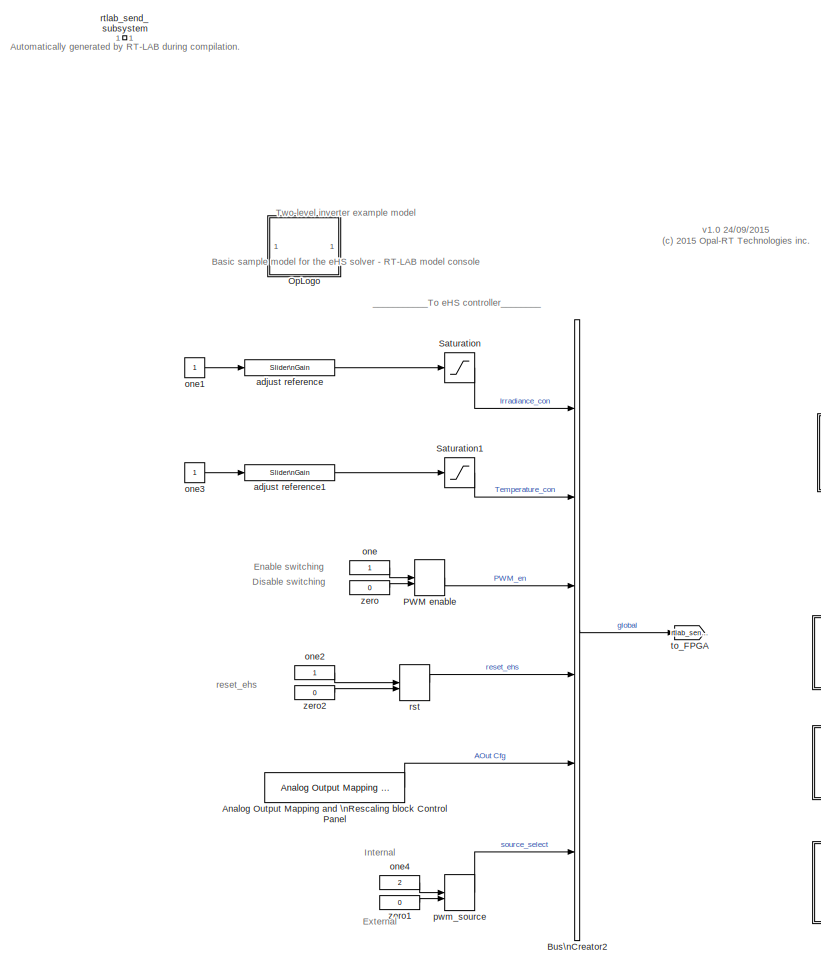
[diagram: root canvas - part 1/2, middle left region]
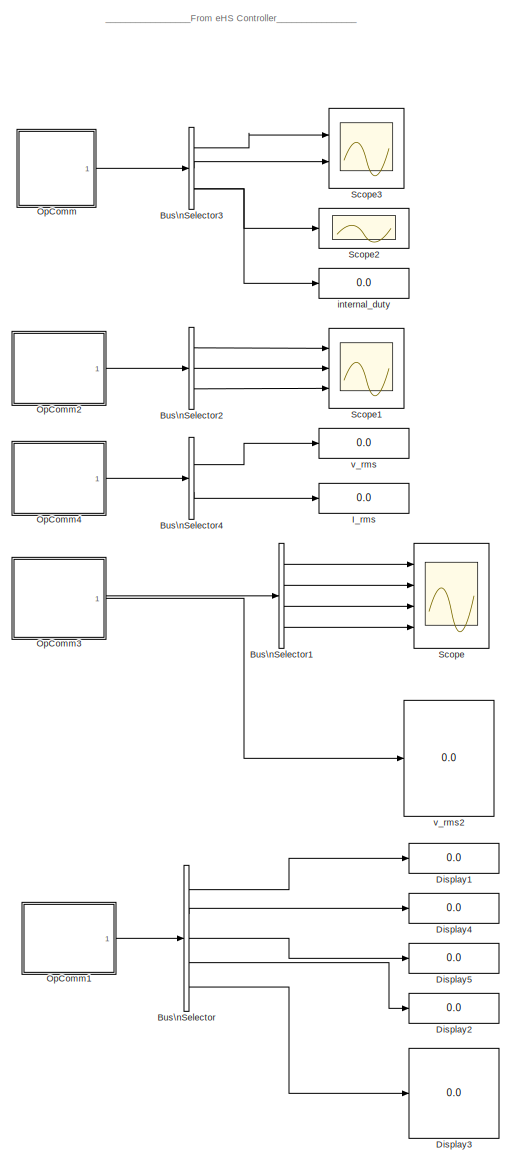
[diagram: root canvas - part 2/2, right side, full height]
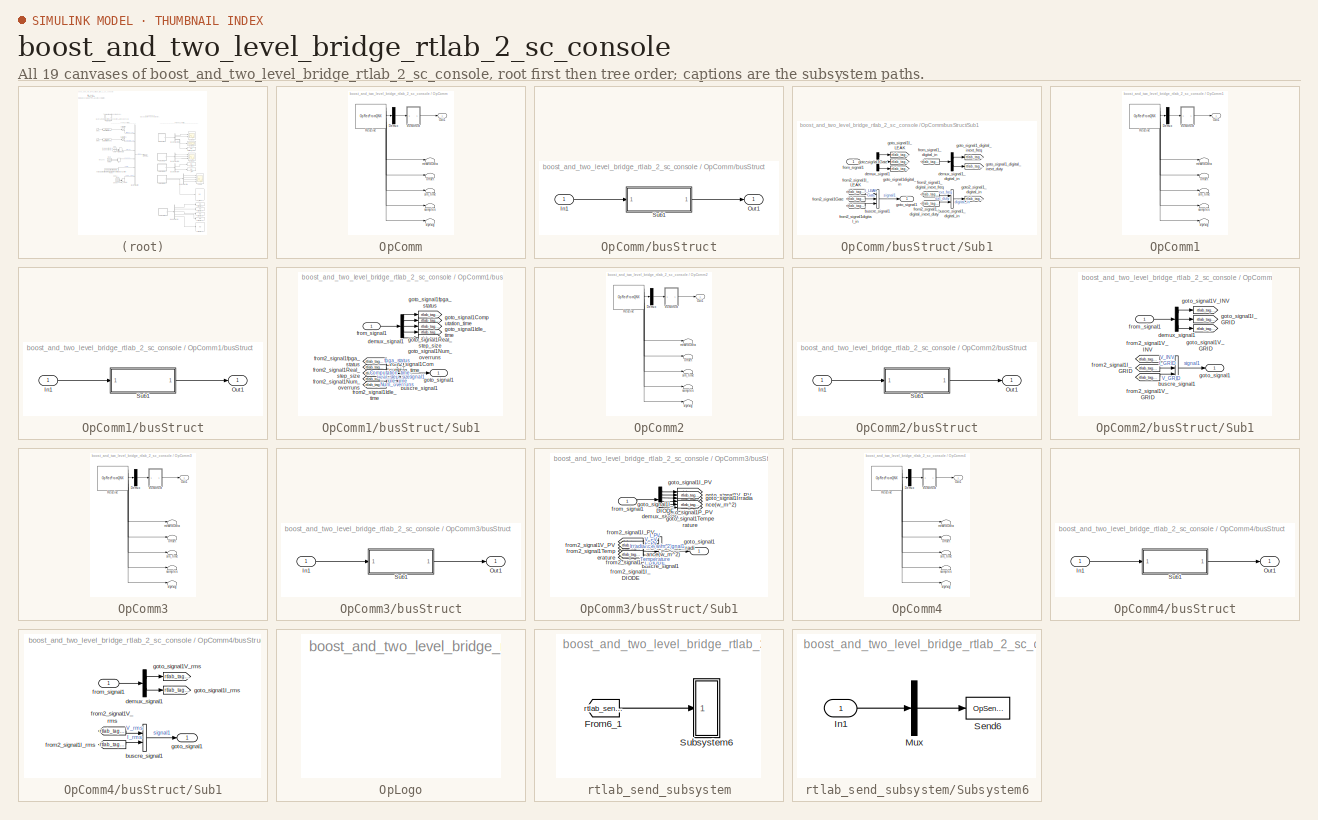
[diagram: thumbnail index - all 19 canvases of the model, root first then tree order]
MODEL boost_and_two_level_bridge_rtlab_2_sc_console
KIND model
CONFIG InitFcn = Ts = 20e-6;
CONFIG PostLoadFcn = Ts = 20e-6;
BLOCK [Reference] Analog Output Mapping and \nRescaling block Control Panel  REF=efs_cpuhilios_crtl_lib/Analog Output Mapping and \nRescaling block Control Panel
  NbChannels = 32
  NbUsrAOut = 16
  Ports = [0, 1]
  SID = 5559
  SigNames = {'eHS.Y01' 'eHS.Y02' 'eHS.Y03' 'eHS.Y04' 'eHS.Y05' 'eHS.Y06' 'eHS.Y07' 'eHS.Y08' 'eHS.Y09' 'eHS.Y10' 'eHS.Y11' 'eHS.Y12' 'eHS.Y13' 'eHS.Y14' 'eHS.Y15' 'eHS.Y16' 'eHS.Y17' 'eHS.Y18' 'eHS.Y19' 'eHS.Y20' 'eHS.Y21' 'eHS.Y22' 'eHS.Y23' 'eHS.Y24' 'eHS.Y25' 'eHS.Y26' 'eHS.Y27' 'eHS.Y28' 'eHS.Y29' 'eHS.Y30' 'eHS.Y31' 'eHS.Y32'}
  SourceBlock = efs_cpuhilios_crtl_lib/Analog Output Mapping and \nRescaling block Control Panel
  SourceType = Analog Output Mapping and Rescaling block Control Panel
  gain0 = 0.0063462
  gain1 = 0.33
  gain10 = 0.1
  gain11 = 0.1
  gain12 = .005
  gain13 = .1
  gain14 = .1
  gain15 = .1
  gain16 = 1
  gain17 = 1
  gain18 = 1
  gain19 = 1
  gain2 = 0.053848
  gain20 = 1
  gain21 = 1
  gain22 = 1
  gain23 = 1
  gain24 = 1
  gain25 = 1
  gain26 = 1
  gain27 = 1
  gain28 = 1
  gain29 = 1
  gain3 = 0.0048614
  gain30 = 1
  gain31 = 1
  gain4 = 0.0048614
  gain5 = 0.066
  gain6 = 0.0063462
  gain7 = 0.005
  gain8 = 0.1
  gain9 = 0.1
  map = [ 49 48 52 53 53 52 49 3 12 13 0 2 48 49 50 51 48 49 50 51 52 53 54 54 56 57 58 59 60 61 62 63 ]
  max0 = 3.3
  max1 = 3.3
  max10 = 5
  max11 = 5
  max12 = 16
  max13 = 16
  max14 = 16
  max15 = 16
  max16 = 16
  max17 = 16
  max18 = 16
  max19 = 16
  max2 = 3.3
  max20 = 16
  max21 = 16
  max22 = 16
  max23 = 16
  max24 = 16
  max25 = 16
  max26 = 16
  max27 = 16
  max28 = 16
  max29 = 16
  max3 = 3.3
  max30 = 16
  max31 = 16
  max4 = 3.3
  max5 = 3.3
  max6 = 3.3
  max7 = 5
  max8 = 5
  max9 = 5
  min0 = 0
  min1 = 0
  min10 = -5
  min11 = -5
  min12 = -16
  min13 = -16
  min14 = -16
  min15 = -16
  min16 = -16
  min17 = -16
  min18 = -16
  min19 = -16
  min2 = 0
  min20 = -16
  min21 = -16
  min22 = -16
  min23 = -16
  min24 = -16
  min25 = -16
  min26 = -16
  min27 = -16
  min28 = -16
  min29 = -16
  min3 = 0
  min30 = -16
  min31 = -16
  min4 = 0
  min5 = 0
  min6 = 0
  min7 = -5
  min8 = -5
  min9 = -5
  offset0 = 0
  offset1 = 0
  offset10 = 0
  offset11 = 0
  offset12 = 0
  offset13 = 0
  offset14 = 0
  offset15 = 0
  offset16 = 0
  offset17 = 0
  offset18 = 0
  offset19 = 0
  offset2 = 1.65
  offset20 = 0
  offset21 = 0
  offset22 = 0
  offset23 = 0
  offset24 = 0
  offset25 = 0
  offset26 = 0
  offset27 = 0
  offset28 = 0
  offset29 = 0
  offset3 = 1.6500
  offset30 = 0
  offset31 = 0
  offset4 = 1.6500
  offset5 = 1.65
  offset6 = 0
  offset7 = 0
  offset8 = 0
  offset9 = 0
  signalch0 = User2
  signalch1 = User1
  signalch10 = eHS.Y01
  signalch11 = eHS.Y03
  signalch12 = User1
  signalch13 = User2
  signalch14 = User3
  signalch15 = User4
  signalch16 = User1
  signalch17 = User2
  signalch18 = User3
  signalch19 = User4
  signalch2 = User5
  signalch20 = User5
  signalch21 = User6
  signalch22 = User7
  signalch23 = User7
  signalch24 = User9
  signalch25 = User10
  signalch26 = User11
  signalch27 = User12
  signalch28 = User13
  signalch29 = User14
  signalch3 = User6
  signalch30 = User15
  signalch31 = User16
  signalch4 = User6
  signalch5 = User5
  signalch6 = User2
  signalch7 = eHS.Y04
  signalch8 = eHS.Y13
  signalch9 = eHS.Y14
BLOCK [BusCreator] Bus\nCreator2
  DisplayOption = bar
  Inputs = 6
  Ports = [6, 1]
  SID = 5560
BLOCK [BusSelector] Bus\nSelector
  OutputSignals = Computation_time,Real_step_size,Idle_time,Num_overruns,fpga_status
  Ports = [1, 5]
  SID = 5561
BLOCK [BusSelector] Bus\nSelector1
  OutputSignals = Irradiance(w/m^2),I_PV,V_PV,P_PV
  Ports = [1, 4]
  SID = 5562
BLOCK [BusSelector] Bus\nSelector2
  OutputSignals = I_GRID,V_GRID,V_INV
  Ports = [1, 3]
  SID = 5563
BLOCK [BusSelector] Bus\nSelector3
  OutputSignals = digital_in.ext_freq,digital_in.ext_duty,Gate
  Ports = [1, 3]
  SID = 5564
BLOCK [BusSelector] Bus\nSelector4
  OutputSignals = V_rms,I_rms
  Ports = [1, 2]
  SID = 5565
BLOCK [Display] Display1
  Decimation = 12500
  Ports = [1]
  SID = 5566
BLOCK [Display] Display2
  Decimation = 12500
  Ports = [1]
  SID = 5567
BLOCK [Display] Display3
  Decimation = 12500
  Ports = [1]
  SID = 5568
BLOCK [Display] Display4
  Decimation = 12500
  Ports = [1]
  SID = 5569
BLOCK [Display] Display5
  Decimation = 12500
  Ports = [1]
  SID = 5570
BLOCK [Display] I_rms
  Decimation = 12500
  Ports = [1]
  SID = 5571
BLOCK [SubSystem] OpComm
  Ports = [0, 1]
  RequestExecContextInheritance = off
  SID = 5643
BLOCK [Demux] OpComm/Demux
  Outputs = [4]
  Ports = [1, 1]
  SID = 5644
BLOCK [Outport] OpComm/Out1
  IconDisplay = Port number
  SID = 5673
BLOCK [Reference] OpComm/Receive  REF=opal_lib/Communication/OpRecFromQNX
  Acqu_Group = 1
  Data_Width = 4
  Interpolation = on
  Node_num = 1
  Ports = [0, 6]
  SID = 5645
  SourceBlock = opal_lib/Communication/OpRecFromQNX
  SourceType = OPAL Receive Icon
  Synchronization = on
  Threshold = 1.0
  modelname = boost_and_two_level_bridge_rtlab.mdl
  sampletime = 2e-05
BLOCK [SubSystem] OpComm/busStruct
  Ports = [1, 1]
  RequestExecContextInheritance = off
  SID = 5646
BLOCK [Inport] OpComm/busStruct/In1
  IconDisplay = Port number
  SID = 5647
BLOCK [Outport] OpComm/busStruct/Out1
  IconDisplay = Port number
  SID = 5667
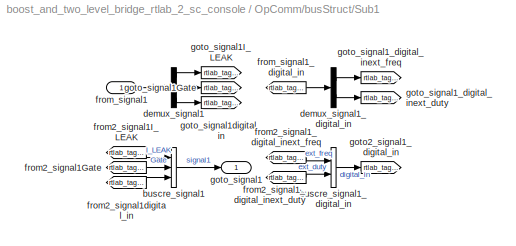
BLOCK [SubSystem] OpComm/busStruct/Sub1
  Ports = [1, 1]
  RequestExecContextInheritance = off
  SID = 5648
BLOCK [BusCreator] OpComm/busStruct/Sub1/buscre_signal1
  Inputs = 3
  Ports = [3, 1]
  SID = 5650
BLOCK [BusCreator] OpComm/busStruct/Sub1/buscre_signal1_digital_in
  Inputs = 2
  Ports = [2, 1]
  SID = 5651
BLOCK [Demux] OpComm/busStruct/Sub1/demux_signal1
  Outputs = [1  1  2]
  Ports = [1, 3]
  SID = 5652
BLOCK [Demux] OpComm/busStruct/Sub1/demux_signal1_digital_in
  Outputs = [1  1]
  Ports = [1, 2]
  SID = 5653
BLOCK [From] OpComm/busStruct/Sub1/from2_signal1Gate
  GotoTag = rtlab_tag_2
  SID = 5654
BLOCK [From] OpComm/busStruct/Sub1/from2_signal1I_LEAK
  GotoTag = rtlab_tag_1
  SID = 5655
BLOCK [From] OpComm/busStruct/Sub1/from2_signal1_digital_inext_duty
  GotoTag = rtlab_tag_6
  SID = 5656
BLOCK [From] OpComm/busStruct/Sub1/from2_signal1_digital_inext_freq
  GotoTag = rtlab_tag_5
  SID = 5657
BLOCK [From] OpComm/busStruct/Sub1/from2_signal1digital_in
  GotoTag = rtlab_tag_4
  SID = 5658
BLOCK [Inport] OpComm/busStruct/Sub1/from_signal1
  IconDisplay = Port number
  SID = 5649
BLOCK [From] OpComm/busStruct/Sub1/from_signal1_digital_in
  GotoTag = rtlab_tag_3
  SID = 5659
BLOCK [Goto] OpComm/busStruct/Sub1/goto2_signal1_digital_in
  GotoTag = rtlab_tag_4
  SID = 5660
BLOCK [Outport] OpComm/busStruct/Sub1/goto_signal1
  IconDisplay = Port number
  SID = 5666
BLOCK [Goto] OpComm/busStruct/Sub1/goto_signal1Gate
  GotoTag = rtlab_tag_2
  SID = 5661
BLOCK [Goto] OpComm/busStruct/Sub1/goto_signal1I_LEAK
  GotoTag = rtlab_tag_1
  SID = 5662
BLOCK [Goto] OpComm/busStruct/Sub1/goto_signal1_digital_inext_duty
  GotoTag = rtlab_tag_6
  SID = 5663
BLOCK [Goto] OpComm/busStruct/Sub1/goto_signal1_digital_inext_freq
  GotoTag = rtlab_tag_5
  SID = 5664
BLOCK [Goto] OpComm/busStruct/Sub1/goto_signal1digital_in
  GotoTag = rtlab_tag_3
  SID = 5665
BLOCK [Terminator] OpComm/dynsig
  SID = 5668
BLOCK [Terminator] OpComm/missedData
  SID = 5669
BLOCK [Terminator] OpComm/offset
  SID = 5670
BLOCK [Terminator] OpComm/samples
  SID = 5671
BLOCK [Terminator] OpComm/sim_time
  SID = 5672
BLOCK [SubSystem] OpComm1
  Ports = [0, 1]
  RequestExecContextInheritance = off
  SID = 5701
BLOCK [Demux] OpComm1/Demux
  Outputs = [8]
  Ports = [1, 1]
  SID = 5702
BLOCK [Outport] OpComm1/Out1
  IconDisplay = Port number
  SID = 5727
BLOCK [Reference] OpComm1/Receive  REF=opal_lib/Communication/OpRecFromQNX
  Acqu_Group = 2
  Data_Width = 8
  Interpolation = on
  Node_num = 1
  Ports = [0, 6]
  SID = 5703
  SourceBlock = opal_lib/Communication/OpRecFromQNX
  SourceType = OPAL Receive Icon
  Synchronization = on
  Threshold = 1.0
  modelname = boost_and_two_level_bridge_rtlab.mdl
  sampletime = 2e-05
BLOCK [SubSystem] OpComm1/busStruct
  Ports = [1, 1]
  RequestExecContextInheritance = off
  SID = 5704
BLOCK [Inport] OpComm1/busStruct/In1
  IconDisplay = Port number
  SID = 5705
BLOCK [Outport] OpComm1/busStruct/Out1
  IconDisplay = Port number
  SID = 5721
BLOCK [SubSystem] OpComm1/busStruct/Sub1
  Ports = [1, 1]
  RequestExecContextInheritance = off
  SID = 5706
BLOCK [BusCreator] OpComm1/busStruct/Sub1/buscre_signal1
  Inputs = 5
  Ports = [5, 1]
  SID = 5708
BLOCK [Demux] OpComm1/busStruct/Sub1/demux_signal1
  Outputs = [4  1  1  1  1]
  Ports = [1, 5]
  SID = 5709
BLOCK [From] OpComm1/busStruct/Sub1/from2_signal1Computation_time
  GotoTag = rtlab_tag_2
  SID = 5710
BLOCK [From] OpComm1/busStruct/Sub1/from2_signal1Idle_time
  GotoTag = rtlab_tag_4
  SID = 5711
BLOCK [From] OpComm1/busStruct/Sub1/from2_signal1Num_overruns
  GotoTag = rtlab_tag_5
  SID = 5712
BLOCK [From] OpComm1/busStruct/Sub1/from2_signal1Real_step_size
  GotoTag = rtlab_tag_3
  SID = 5713
BLOCK [From] OpComm1/busStruct/Sub1/from2_signal1fpga_status
  GotoTag = rtlab_tag_1
  SID = 5714
BLOCK [Inport] OpComm1/busStruct/Sub1/from_signal1
  IconDisplay = Port number
  SID = 5707
BLOCK [Outport] OpComm1/busStruct/Sub1/goto_signal1
  IconDisplay = Port number
  SID = 5720
BLOCK [Goto] OpComm1/busStruct/Sub1/goto_signal1Computation_time
  GotoTag = rtlab_tag_2
  SID = 5715
BLOCK [Goto] OpComm1/busStruct/Sub1/goto_signal1Idle_time
  GotoTag = rtlab_tag_4
  SID = 5716
BLOCK [Goto] OpComm1/busStruct/Sub1/goto_signal1Num_overruns
  GotoTag = rtlab_tag_5
  SID = 5717
BLOCK [Goto] OpComm1/busStruct/Sub1/goto_signal1Real_step_size
  GotoTag = rtlab_tag_3
  SID = 5718
BLOCK [Goto] OpComm1/busStruct/Sub1/goto_signal1fpga_status
  GotoTag = rtlab_tag_1
  SID = 5719
BLOCK [Terminator] OpComm1/dynsig
  SID = 5722
BLOCK [Terminator] OpComm1/missedData
  SID = 5723
BLOCK [Terminator] OpComm1/offset
  SID = 5724
BLOCK [Terminator] OpComm1/samples
  SID = 5725
BLOCK [Terminator] OpComm1/sim_time
  SID = 5726
BLOCK [SubSystem] OpComm2
  Ports = [0, 1]
  RequestExecContextInheritance = off
  SID = 5751
BLOCK [Demux] OpComm2/Demux
  Outputs = [3]
  Ports = [1, 1]
  SID = 5752
BLOCK [Outport] OpComm2/Out1
  IconDisplay = Port number
  SID = 5773
BLOCK [Reference] OpComm2/Receive  REF=opal_lib/Communication/OpRecFromQNX
  Acqu_Group = 4
  Data_Width = 3
  Interpolation = on
  Node_num = 1
  Ports = [0, 6]
  SID = 5753
  SourceBlock = opal_lib/Communication/OpRecFromQNX
  SourceType = OPAL Receive Icon
  Synchronization = on
  Threshold = 1.0
  modelname = boost_and_two_level_bridge_rtlab.mdl
  sampletime = 2e-05
BLOCK [SubSystem] OpComm2/busStruct
  Ports = [1, 1]
  RequestExecContextInheritance = off
  SID = 5754
BLOCK [Inport] OpComm2/busStruct/In1
  IconDisplay = Port number
  SID = 5755
BLOCK [Outport] OpComm2/busStruct/Out1
  IconDisplay = Port number
  SID = 5767
BLOCK [SubSystem] OpComm2/busStruct/Sub1
  Ports = [1, 1]
  RequestExecContextInheritance = off
  SID = 5756
BLOCK [BusCreator] OpComm2/busStruct/Sub1/buscre_signal1
  Inputs = 3
  Ports = [3, 1]
  SID = 5758
BLOCK [Demux] OpComm2/busStruct/Sub1/demux_signal1
  Outputs = [1  1  1]
  Ports = [1, 3]
  SID = 5759
BLOCK [From] OpComm2/busStruct/Sub1/from2_signal1I_GRID
  GotoTag = rtlab_tag_2
  SID = 5760
BLOCK [From] OpComm2/busStruct/Sub1/from2_signal1V_GRID
  GotoTag = rtlab_tag_3
  SID = 5761
BLOCK [From] OpComm2/busStruct/Sub1/from2_signal1V_INV
  GotoTag = rtlab_tag_1
  SID = 5762
BLOCK [Inport] OpComm2/busStruct/Sub1/from_signal1
  IconDisplay = Port number
  SID = 5757
BLOCK [Outport] OpComm2/busStruct/Sub1/goto_signal1
  IconDisplay = Port number
  SID = 5766
BLOCK [Goto] OpComm2/busStruct/Sub1/goto_signal1I_GRID
  GotoTag = rtlab_tag_2
  SID = 5763
BLOCK [Goto] OpComm2/busStruct/Sub1/goto_signal1V_GRID
  GotoTag = rtlab_tag_3
  SID = 5764
BLOCK [Goto] OpComm2/busStruct/Sub1/goto_signal1V_INV
  GotoTag = rtlab_tag_1
  SID = 5765
BLOCK [Terminator] OpComm2/dynsig
  SID = 5768
BLOCK [Terminator] OpComm2/missedData
  SID = 5769
BLOCK [Terminator] OpComm2/offset
  SID = 5770
BLOCK [Terminator] OpComm2/samples
  SID = 5771
BLOCK [Terminator] OpComm2/sim_time
  SID = 5772
BLOCK [SubSystem] OpComm3
  Ports = [0, 1]
  RequestExecContextInheritance = off
  SID = 5803
BLOCK [Demux] OpComm3/Demux
  Outputs = [6]
  Ports = [1, 1]
  SID = 5804
BLOCK [Outport] OpComm3/Out1
  IconDisplay = Port number
  SID = 5831
BLOCK [Reference] OpComm3/Receive  REF=opal_lib/Communication/OpRecFromQNX
  Acqu_Group = 3
  Data_Width = 6
  Interpolation = on
  Node_num = 1
  Ports = [0, 6]
  SID = 5805
  SourceBlock = opal_lib/Communication/OpRecFromQNX
  SourceType = OPAL Receive Icon
  Synchronization = on
  Threshold = 1.0
  modelname = boost_and_two_level_bridge_rtlab.mdl
  sampletime = 2e-05
BLOCK [SubSystem] OpComm3/busStruct
  Ports = [1, 1]
  RequestExecContextInheritance = off
  SID = 5806
BLOCK [Inport] OpComm3/busStruct/In1
  IconDisplay = Port number
  SID = 5807
BLOCK [Outport] OpComm3/busStruct/Out1
  IconDisplay = Port number
  SID = 5825
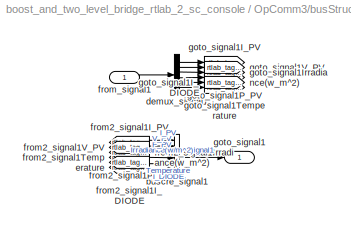
BLOCK [SubSystem] OpComm3/busStruct/Sub1
  Ports = [1, 1]
  RequestExecContextInheritance = off
  SID = 5808
BLOCK [BusCreator] OpComm3/busStruct/Sub1/buscre_signal1
  Inputs = 6
  Ports = [6, 1]
  SID = 5810
BLOCK [Demux] OpComm3/busStruct/Sub1/demux_signal1
  Outputs = [1  1  1  1  1  1]
  Ports = [1, 6]
  SID = 5811
BLOCK [From] OpComm3/busStruct/Sub1/from2_signal1I_DIODE
  GotoTag = rtlab_tag_6
  SID = 5812
BLOCK [From] OpComm3/busStruct/Sub1/from2_signal1I_PV
  GotoTag = rtlab_tag_1
  SID = 5813
BLOCK [From] OpComm3/busStruct/Sub1/from2_signal1Irradiance(w_m^2)
  GotoTag = rtlab_tag_4
  SID = 5814
BLOCK [From] OpComm3/busStruct/Sub1/from2_signal1P_PV
  GotoTag = rtlab_tag_3
  SID = 5815
BLOCK [From] OpComm3/busStruct/Sub1/from2_signal1Temperature
  GotoTag = rtlab_tag_5
  SID = 5816
BLOCK [From] OpComm3/busStruct/Sub1/from2_signal1V_PV
  GotoTag = rtlab_tag_2
  SID = 5817
BLOCK [Inport] OpComm3/busStruct/Sub1/from_signal1
  IconDisplay = Port number
  SID = 5809
BLOCK [Outport] OpComm3/busStruct/Sub1/goto_signal1
  IconDisplay = Port number
  SID = 5824
BLOCK [Goto] OpComm3/busStruct/Sub1/goto_signal1I_DIODE
  GotoTag = rtlab_tag_6
  SID = 5818
BLOCK [Goto] OpComm3/busStruct/Sub1/goto_signal1I_PV
  GotoTag = rtlab_tag_1
  SID = 5819
BLOCK [Goto] OpComm3/busStruct/Sub1/goto_signal1Irradiance(w_m^2)
  GotoTag = rtlab_tag_4
  SID = 5820
BLOCK [Goto] OpComm3/busStruct/Sub1/goto_signal1P_PV
  GotoTag = rtlab_tag_3
  SID = 5821
BLOCK [Goto] OpComm3/busStruct/Sub1/goto_signal1Temperature
  GotoTag = rtlab_tag_5
  SID = 5822
BLOCK [Goto] OpComm3/busStruct/Sub1/goto_signal1V_PV
  GotoTag = rtlab_tag_2
  SID = 5823
BLOCK [Terminator] OpComm3/dynsig
  SID = 5826
BLOCK [Terminator] OpComm3/missedData
  SID = 5827
BLOCK [Terminator] OpComm3/offset
  SID = 5828
BLOCK [Terminator] OpComm3/samples
  SID = 5829
BLOCK [Terminator] OpComm3/sim_time
  SID = 5830
BLOCK [SubSystem] OpComm4
  Ports = [0, 1]
  RequestExecContextInheritance = off
  SID = 5853
BLOCK [Demux] OpComm4/Demux
  Outputs = [2]
  Ports = [1, 1]
  SID = 5854
BLOCK [Outport] OpComm4/Out1
  IconDisplay = Port number
  SID = 5873
BLOCK [Reference] OpComm4/Receive  REF=opal_lib/Communication/OpRecFromQNX
  Acqu_Group = 5
  Data_Width = 2
  Interpolation = on
  Node_num = 1
  Ports = [0, 6]
  SID = 5855
  SourceBlock = opal_lib/Communication/OpRecFromQNX
  SourceType = OPAL Receive Icon
  Synchronization = on
  Threshold = 1.0
  modelname = boost_and_two_level_bridge_rtlab.mdl
  sampletime = 2e-05
BLOCK [SubSystem] OpComm4/busStruct
  Ports = [1, 1]
  RequestExecContextInheritance = off
  SID = 5856
BLOCK [Inport] OpComm4/busStruct/In1
  IconDisplay = Port number
  SID = 5857
BLOCK [Outport] OpComm4/busStruct/Out1
  IconDisplay = Port number
  SID = 5867
BLOCK [SubSystem] OpComm4/busStruct/Sub1
  Ports = [1, 1]
  RequestExecContextInheritance = off
  SID = 5858
BLOCK [BusCreator] OpComm4/busStruct/Sub1/buscre_signal1
  Inputs = 2
  Ports = [2, 1]
  SID = 5860
BLOCK [Demux] OpComm4/busStruct/Sub1/demux_signal1
  Outputs = [1  1]
  Ports = [1, 2]
  SID = 5861
BLOCK [From] OpComm4/busStruct/Sub1/from2_signal1I_rms
  GotoTag = rtlab_tag_2
  SID = 5862
BLOCK [From] OpComm4/busStruct/Sub1/from2_signal1V_rms
  GotoTag = rtlab_tag_1
  SID = 5863
BLOCK [Inport] OpComm4/busStruct/Sub1/from_signal1
  IconDisplay = Port number
  SID = 5859
BLOCK [Outport] OpComm4/busStruct/Sub1/goto_signal1
  IconDisplay = Port number
  SID = 5866
BLOCK [Goto] OpComm4/busStruct/Sub1/goto_signal1I_rms
  GotoTag = rtlab_tag_2
  SID = 5864
BLOCK [Goto] OpComm4/busStruct/Sub1/goto_signal1V_rms
  GotoTag = rtlab_tag_1
  SID = 5865
BLOCK [Terminator] OpComm4/dynsig
  SID = 5868
BLOCK [Terminator] OpComm4/missedData
  SID = 5869
BLOCK [Terminator] OpComm4/offset
  SID = 5870
BLOCK [Terminator] OpComm4/samples
  SID = 5871
BLOCK [Terminator] OpComm4/sim_time
  SID = 5872
BLOCK [SubSystem] OpLogo
  Ports = []
  RequestExecContextInheritance = off
  SID = 5577
BLOCK [ManualSwitch] PWM enable
  SID = 5578
BLOCK [Saturate] Saturation
  InputPortMap = u0
  LowerLimit = 0
  Ports = [1, 1]
  SID = 5579
  UpperLimit = 1000
BLOCK [Saturate] Saturation1
  InputPortMap = u0
  LowerLimit = -10
  Ports = [1, 1]
  SID = 5580
  UpperLimit = 60
BLOCK [Scope] Scope
  Decimation = 100
  Floating = off
  NumInputPorts = 4
  Ports = [4]
  SID = 5581
  SampleInput = on
  SampleTime = 2e-3
  SaveName = ScopeData1
  ShowLegends = off
  YMax = 5~5~5~5
  YMin = -5~-5~-5~-5
BLOCK [Scope] Scope1
  Floating = off
  NumInputPorts = 3
  Ports = [3]
  SID = 5582
  SampleInput = on
  SampleTime = 1e-3
  SaveName = ScopeData2
  ShowLegends = off
  YMax = 5~5~5
  YMin = -5~-5~-5
BLOCK [Scope] Scope2
  Floating = off
  MaxDataPoints = 10000
  NumInputPorts = 1
  Ports = [1]
  SID = 5583
  SampleInput = on
  SampleTime = 2e-4
  SaveName = ScopeData3
  ShowLegends = off
BLOCK [Scope] Scope3
  Floating = off
  MaxDataPoints = 100000
  NumInputPorts = 2
  Ports = [2]
  SID = 5584
  SampleInput = on
  SampleTime = 1e-3
  SaveName = ScopeData4
  ShowLegends = off
  YMax = 5~5
  YMin = -5~-5
BLOCK [Reference] adjust reference  REF=simulink/Math\nOperations/Slider\nGain
  Ports = [1, 1]
  SID = 5585
  SourceBlock = simulink/Math\nOperations/Slider\nGain
  SourceType = Slider Gain
  gain = 1000
  high = 1000
  low = 0
BLOCK [Reference] adjust reference1  REF=simulink/Math\nOperations/Slider\nGain
  Ports = [1, 1]
  SID = 5586
  SourceBlock = simulink/Math\nOperations/Slider\nGain
  SourceType = Slider Gain
  gain = 25
  high = 60
  low = 0
BLOCK [Display] internal_duty
  Decimation = 12500
  Ports = [1]
  SID = 5587
BLOCK [Constant] one
  SID = 5588
BLOCK [Constant] one1
  SID = 5589
BLOCK [Constant] one2
  SID = 5590
BLOCK [Constant] one3
  SID = 5591
BLOCK [Constant] one4
  SID = 5592
  Value = 2
BLOCK [ManualSwitch] pwm_source
  SID = 5593
BLOCK [ManualSwitch] rst
  CurrentSetting = 0
  SID = 5594
BLOCK [SubSystem] rtlab_send_subsystem
  Ports = []
  Priority = -100
  RequestExecContextInheritance = off
  SID = 5874
BLOCK [From] rtlab_send_subsystem/From6_1
  GotoTag = rtlab_send_1
  SID = 5878
BLOCK [SubSystem] rtlab_send_subsystem/Subsystem6
  Ports = [1]
  RequestExecContextInheritance = off
  SID = 5875
BLOCK [Inport] rtlab_send_subsystem/Subsystem6/In1
  IconDisplay = Port number
  PortDimensions = 165
  SID = 5879
BLOCK [Mux] rtlab_send_subsystem/Subsystem6/Mux
  Inputs = 1
  Ports = [1, 1]
  SID = 5876
BLOCK [Reference] rtlab_send_subsystem/Subsystem6/Send6  REF=opal_lib/Communication/OpSendPar\nToQNX
  Node_num = 1
  Ports = [1]
  SID = 5877
  SourceBlock = opal_lib/Communication/OpSendPar\nToQNX
  SourceType = OPAL Send Icon
  modelname = boost_and_two_level_bridge_rtlab
BLOCK [Goto] to_FPGA
  GotoTag = rtlab_send_1
  SID = 5880
  TagVisibility = global
BLOCK [Display] v_rms
  Decimation = 12500
  Ports = [1]
  SID = 5595
BLOCK [Display] v_rms2
  Decimation = 12500
  Ports = [1]
  SID = 5596
BLOCK [Constant] zero
  SID = 5597
  Value = 0
BLOCK [Constant] zero1
  SID = 5598
  Value = 0
BLOCK [Constant] zero2
  SID = 5599
  Value = 0
ANNOTATION (root): Automatically generated by RT-LAB during compilation.
ANNOTATION (root): Basic sample model for the eHS solver - RT-LAB model console
ANNOTATION (root): Disable switching
ANNOTATION (root): Enable switching
ANNOTATION (root): External
ANNOTATION (root): Internal
ANNOTATION (root): Two-level inverter example model
ANNOTATION (root): ___________To eHS controller________
ANNOTATION (root): _________________From eHS Controller________________
ANNOTATION (root): reset_ehs
ANNOTATION (root): v1.0 24/09/2015\n(c) 2015 Opal-RT Technologies inc.
LINE Analog Output Mapping and \nRescaling block Control Panel:1 -> Bus\nCreator2:5
LINE Bus\nCreator2:1 -> to_FPGA:1
LINE Bus\nSelector1:1 -> Scope:1
LINE Bus\nSelector1:2 -> Scope:2
LINE Bus\nSelector1:3 -> Scope:3
LINE Bus\nSelector1:4 -> Scope:4
LINE Bus\nSelector2:1 -> Scope1:1
LINE Bus\nSelector2:2 -> Scope1:2
LINE Bus\nSelector2:3 -> Scope1:3
LINE Bus\nSelector3:1 -> Scope3:1
LINE Bus\nSelector3:2 -> Scope3:2
NET Bus\nSelector3:3 -> Scope2:1, internal_duty:1
LINE Bus\nSelector4:1 -> v_rms:1
LINE Bus\nSelector4:2 -> I_rms:1
LINE Bus\nSelector:1 -> Display1:1
LINE Bus\nSelector:2 -> Display4:1
LINE Bus\nSelector:3 -> Display5:1
LINE Bus\nSelector:4 -> Display2:1
LINE Bus\nSelector:5 -> Display3:1
LINE OpComm/Demux:1 -> OpComm/busStruct:1
LINE OpComm/Receive:1 -> OpComm/Demux:1
LINE OpComm/Receive:2 -> OpComm/missedData:1
LINE OpComm/Receive:3 -> OpComm/offset:1
LINE OpComm/Receive:4 -> OpComm/sim_time:1
LINE OpComm/Receive:5 -> OpComm/samples:1
LINE OpComm/Receive:6 -> OpComm/dynsig:1
LINE OpComm/busStruct/In1:1 -> OpComm/busStruct/Sub1:1
LINE OpComm/busStruct/Sub1/buscre_signal1:1 -> OpComm/busStruct/Sub1/goto_signal1:1
LINE OpComm/busStruct/Sub1/buscre_signal1_digital_in:1 -> OpComm/busStruct/Sub1/goto2_signal1_digital_in:1
LINE OpComm/busStruct/Sub1/demux_signal1:1 -> OpComm/busStruct/Sub1/goto_signal1I_LEAK:1
LINE OpComm/busStruct/Sub1/demux_signal1:2 -> OpComm/busStruct/Sub1/goto_signal1Gate:1
LINE OpComm/busStruct/Sub1/demux_signal1:3 -> OpComm/busStruct/Sub1/goto_signal1digital_in:1
LINE OpComm/busStruct/Sub1/demux_signal1_digital_in:1 -> OpComm/busStruct/Sub1/goto_signal1_digital_inext_freq:1
LINE OpComm/busStruct/Sub1/demux_signal1_digital_in:2 -> OpComm/busStruct/Sub1/goto_signal1_digital_inext_duty:1
LINE OpComm/busStruct/Sub1/from2_signal1Gate:1 -> OpComm/busStruct/Sub1/buscre_signal1:2
LINE OpComm/busStruct/Sub1/from2_signal1I_LEAK:1 -> OpComm/busStruct/Sub1/buscre_signal1:1
LINE OpComm/busStruct/Sub1/from2_signal1_digital_inext_duty:1 -> OpComm/busStruct/Sub1/buscre_signal1_digital_in:2
LINE OpComm/busStruct/Sub1/from2_signal1_digital_inext_freq:1 -> OpComm/busStruct/Sub1/buscre_signal1_digital_in:1
LINE OpComm/busStruct/Sub1/from2_signal1digital_in:1 -> OpComm/busStruct/Sub1/buscre_signal1:3
LINE OpComm/busStruct/Sub1/from_signal1:1 -> OpComm/busStruct/Sub1/demux_signal1:1
LINE OpComm/busStruct/Sub1/from_signal1_digital_in:1 -> OpComm/busStruct/Sub1/demux_signal1_digital_in:1
LINE OpComm/busStruct/Sub1:1 -> OpComm/busStruct/Out1:1
LINE OpComm/busStruct:1 -> OpComm/Out1:1
LINE OpComm1/Demux:1 -> OpComm1/busStruct:1
LINE OpComm1/Receive:1 -> OpComm1/Demux:1
LINE OpComm1/Receive:2 -> OpComm1/missedData:1
LINE OpComm1/Receive:3 -> OpComm1/offset:1
LINE OpComm1/Receive:4 -> OpComm1/sim_time:1
LINE OpComm1/Receive:5 -> OpComm1/samples:1
LINE OpComm1/Receive:6 -> OpComm1/dynsig:1
LINE OpComm1/busStruct/In1:1 -> OpComm1/busStruct/Sub1:1
LINE OpComm1/busStruct/Sub1/buscre_signal1:1 -> OpComm1/busStruct/Sub1/goto_signal1:1
LINE OpComm1/busStruct/Sub1/demux_signal1:1 -> OpComm1/busStruct/Sub1/goto_signal1fpga_status:1
LINE OpComm1/busStruct/Sub1/demux_signal1:2 -> OpComm1/busStruct/Sub1/goto_signal1Computation_time:1
LINE OpComm1/busStruct/Sub1/demux_signal1:3 -> OpComm1/busStruct/Sub1/goto_signal1Real_step_size:1
LINE OpComm1/busStruct/Sub1/demux_signal1:4 -> OpComm1/busStruct/Sub1/goto_signal1Idle_time:1
LINE OpComm1/busStruct/Sub1/demux_signal1:5 -> OpComm1/busStruct/Sub1/goto_signal1Num_overruns:1
LINE OpComm1/busStruct/Sub1/from2_signal1Computation_time:1 -> OpComm1/busStruct/Sub1/buscre_signal1:2
LINE OpComm1/busStruct/Sub1/from2_signal1Idle_time:1 -> OpComm1/busStruct/Sub1/buscre_signal1:4
LINE OpComm1/busStruct/Sub1/from2_signal1Num_overruns:1 -> OpComm1/busStruct/Sub1/buscre_signal1:5
LINE OpComm1/busStruct/Sub1/from2_signal1Real_step_size:1 -> OpComm1/busStruct/Sub1/buscre_signal1:3
LINE OpComm1/busStruct/Sub1/from2_signal1fpga_status:1 -> OpComm1/busStruct/Sub1/buscre_signal1:1
LINE OpComm1/busStruct/Sub1/from_signal1:1 -> OpComm1/busStruct/Sub1/demux_signal1:1
LINE OpComm1/busStruct/Sub1:1 -> OpComm1/busStruct/Out1:1
LINE OpComm1/busStruct:1 -> OpComm1/Out1:1
LINE OpComm1:1 -> Bus\nSelector:1
LINE OpComm2/Demux:1 -> OpComm2/busStruct:1
LINE OpComm2/Receive:1 -> OpComm2/Demux:1
LINE OpComm2/Receive:2 -> OpComm2/missedData:1
LINE OpComm2/Receive:3 -> OpComm2/offset:1
LINE OpComm2/Receive:4 -> OpComm2/sim_time:1
LINE OpComm2/Receive:5 -> OpComm2/samples:1
LINE OpComm2/Receive:6 -> OpComm2/dynsig:1
LINE OpComm2/busStruct/In1:1 -> OpComm2/busStruct/Sub1:1
LINE OpComm2/busStruct/Sub1/buscre_signal1:1 -> OpComm2/busStruct/Sub1/goto_signal1:1
LINE OpComm2/busStruct/Sub1/demux_signal1:1 -> OpComm2/busStruct/Sub1/goto_signal1V_INV:1
LINE OpComm2/busStruct/Sub1/demux_signal1:2 -> OpComm2/busStruct/Sub1/goto_signal1I_GRID:1
LINE OpComm2/busStruct/Sub1/demux_signal1:3 -> OpComm2/busStruct/Sub1/goto_signal1V_GRID:1
LINE OpComm2/busStruct/Sub1/from2_signal1I_GRID:1 -> OpComm2/busStruct/Sub1/buscre_signal1:2
LINE OpComm2/busStruct/Sub1/from2_signal1V_GRID:1 -> OpComm2/busStruct/Sub1/buscre_signal1:3
LINE OpComm2/busStruct/Sub1/from2_signal1V_INV:1 -> OpComm2/busStruct/Sub1/buscre_signal1:1
LINE OpComm2/busStruct/Sub1/from_signal1:1 -> OpComm2/busStruct/Sub1/demux_signal1:1
LINE OpComm2/busStruct/Sub1:1 -> OpComm2/busStruct/Out1:1
LINE OpComm2/busStruct:1 -> OpComm2/Out1:1
LINE OpComm2:1 -> Bus\nSelector2:1
LINE OpComm3/Demux:1 -> OpComm3/busStruct:1
LINE OpComm3/Receive:1 -> OpComm3/Demux:1
LINE OpComm3/Receive:2 -> OpComm3/missedData:1
LINE OpComm3/Receive:3 -> OpComm3/offset:1
LINE OpComm3/Receive:4 -> OpComm3/sim_time:1
LINE OpComm3/Receive:5 -> OpComm3/samples:1
LINE OpComm3/Receive:6 -> OpComm3/dynsig:1
LINE OpComm3/busStruct/In1:1 -> OpComm3/busStruct/Sub1:1
LINE OpComm3/busStruct/Sub1/buscre_signal1:1 -> OpComm3/busStruct/Sub1/goto_signal1:1
LINE OpComm3/busStruct/Sub1/demux_signal1:1 -> OpComm3/busStruct/Sub1/goto_signal1I_PV:1
LINE OpComm3/busStruct/Sub1/demux_signal1:2 -> OpComm3/busStruct/Sub1/goto_signal1V_PV:1
LINE OpComm3/busStruct/Sub1/demux_signal1:3 -> OpComm3/busStruct/Sub1/goto_signal1P_PV:1
LINE OpComm3/busStruct/Sub1/demux_signal1:4 -> OpComm3/busStruct/Sub1/goto_signal1Irradiance(w_m^2):1
LINE OpComm3/busStruct/Sub1/demux_signal1:5 -> OpComm3/busStruct/Sub1/goto_signal1Temperature:1
LINE OpComm3/busStruct/Sub1/demux_signal1:6 -> OpComm3/busStruct/Sub1/goto_signal1I_DIODE:1
LINE OpComm3/busStruct/Sub1/from2_signal1I_DIODE:1 -> OpComm3/busStruct/Sub1/buscre_signal1:6
LINE OpComm3/busStruct/Sub1/from2_signal1I_PV:1 -> OpComm3/busStruct/Sub1/buscre_signal1:1
LINE OpComm3/busStruct/Sub1/from2_signal1Irradiance(w_m^2):1 -> OpComm3/busStruct/Sub1/buscre_signal1:4
LINE OpComm3/busStruct/Sub1/from2_signal1P_PV:1 -> OpComm3/busStruct/Sub1/buscre_signal1:3
LINE OpComm3/busStruct/Sub1/from2_signal1Temperature:1 -> OpComm3/busStruct/Sub1/buscre_signal1:5
LINE OpComm3/busStruct/Sub1/from2_signal1V_PV:1 -> OpComm3/busStruct/Sub1/buscre_signal1:2
LINE OpComm3/busStruct/Sub1/from_signal1:1 -> OpComm3/busStruct/Sub1/demux_signal1:1
LINE OpComm3/busStruct/Sub1:1 -> OpComm3/busStruct/Out1:1
LINE OpComm3/busStruct:1 -> OpComm3/Out1:1
NET OpComm3:1 -> Bus\nSelector1:1, v_rms2:1
LINE OpComm4/Demux:1 -> OpComm4/busStruct:1
LINE OpComm4/Receive:1 -> OpComm4/Demux:1
LINE OpComm4/Receive:2 -> OpComm4/missedData:1
LINE OpComm4/Receive:3 -> OpComm4/offset:1
LINE OpComm4/Receive:4 -> OpComm4/sim_time:1
LINE OpComm4/Receive:5 -> OpComm4/samples:1
LINE OpComm4/Receive:6 -> OpComm4/dynsig:1
LINE OpComm4/busStruct/In1:1 -> OpComm4/busStruct/Sub1:1
LINE OpComm4/busStruct/Sub1/buscre_signal1:1 -> OpComm4/busStruct/Sub1/goto_signal1:1
LINE OpComm4/busStruct/Sub1/demux_signal1:1 -> OpComm4/busStruct/Sub1/goto_signal1V_rms:1
LINE OpComm4/busStruct/Sub1/demux_signal1:2 -> OpComm4/busStruct/Sub1/goto_signal1I_rms:1
LINE OpComm4/busStruct/Sub1/from2_signal1I_rms:1 -> OpComm4/busStruct/Sub1/buscre_signal1:2
LINE OpComm4/busStruct/Sub1/from2_signal1V_rms:1 -> OpComm4/busStruct/Sub1/buscre_signal1:1
LINE OpComm4/busStruct/Sub1/from_signal1:1 -> OpComm4/busStruct/Sub1/demux_signal1:1
LINE OpComm4/busStruct/Sub1:1 -> OpComm4/busStruct/Out1:1
LINE OpComm4/busStruct:1 -> OpComm4/Out1:1
LINE OpComm4:1 -> Bus\nSelector4:1
LINE OpComm:1 -> Bus\nSelector3:1
LINE PWM enable:1 -> Bus\nCreator2:3
LINE Saturation1:1 -> Bus\nCreator2:2
LINE Saturation:1 -> Bus\nCreator2:1
LINE adjust reference1:1 -> Saturation1:1
LINE adjust reference:1 -> Saturation:1
LINE one1:1 -> adjust reference:1
LINE one2:1 -> rst:1
LINE one3:1 -> adjust reference1:1
LINE one4:1 -> pwm_source:1
LINE one:1 -> PWM enable:1
LINE pwm_source:1 -> Bus\nCreator2:6
LINE rst:1 -> Bus\nCreator2:4
LINE rtlab_send_subsystem/From6_1:1 -> rtlab_send_subsystem/Subsystem6:1
LINE rtlab_send_subsystem/Subsystem6/In1:1 -> rtlab_send_subsystem/Subsystem6/Mux:1
LINE rtlab_send_subsystem/Subsystem6/Mux:1 -> rtlab_send_subsystem/Subsystem6/Send6:1
LINE zero1:1 -> pwm_source:2
LINE zero2:1 -> rst:2
LINE zero:1 -> PWM enable:2
note: NET lines group one-source signal fan-out (src -> all destinations, sorted); 1:1 wires keep LINE
